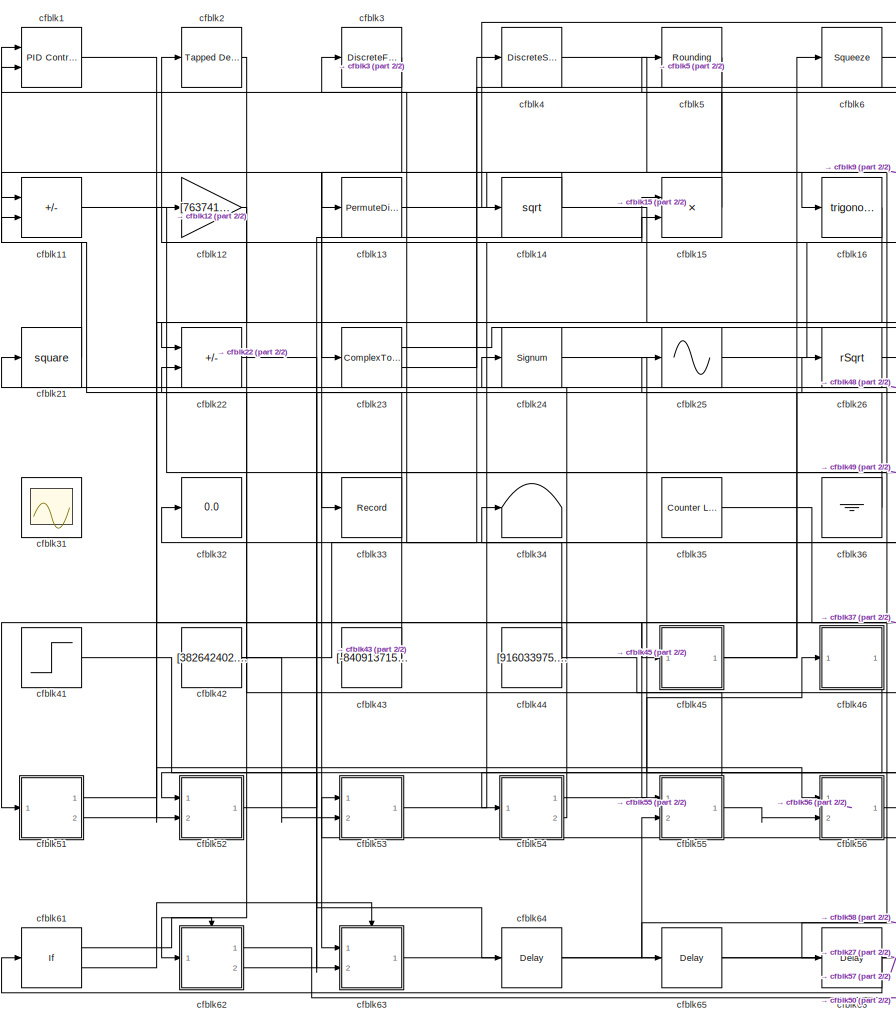
[diagram: root canvas - part 1/2, left side, full height]
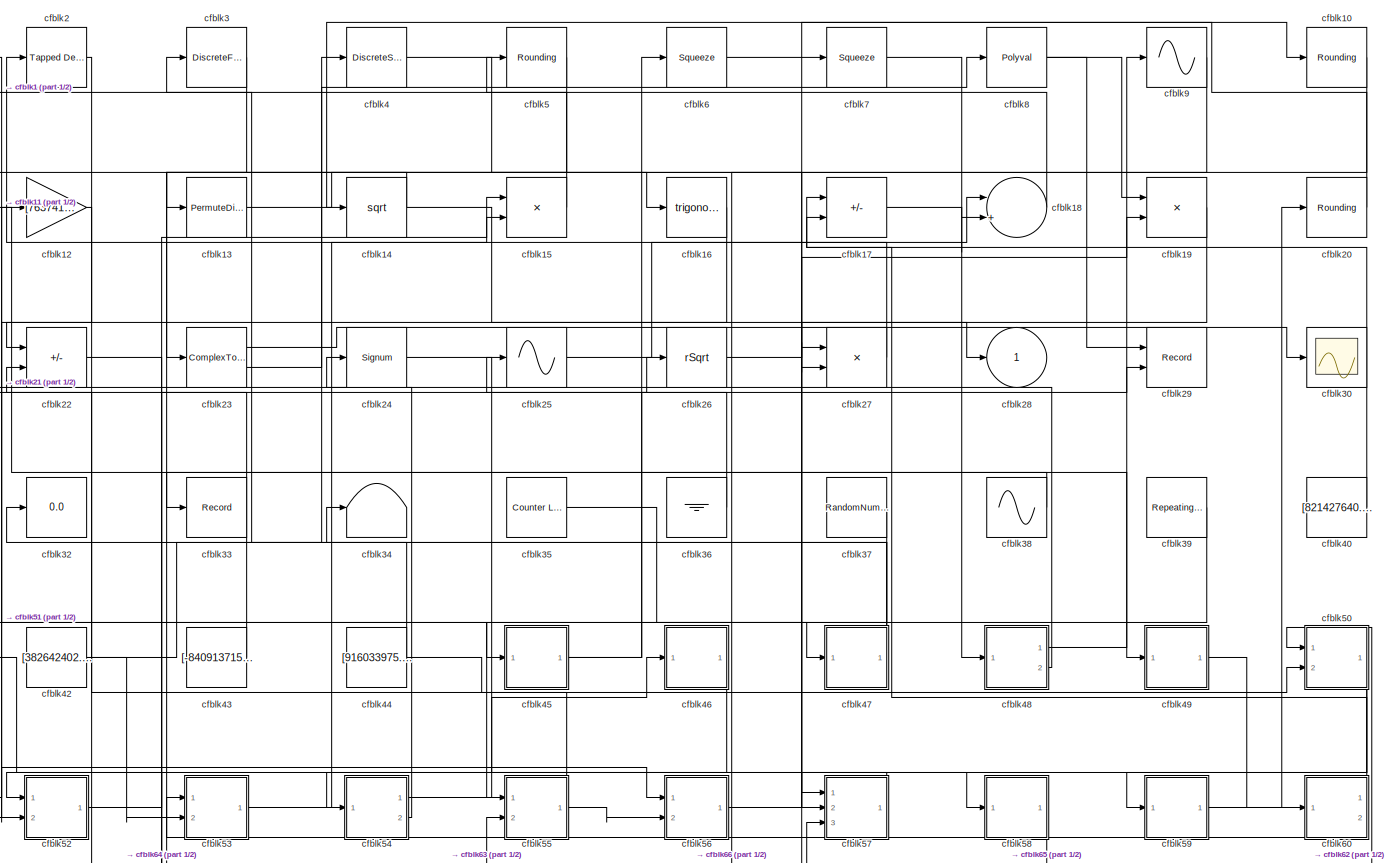
[diagram: root canvas - part 2/2, most of the canvas]
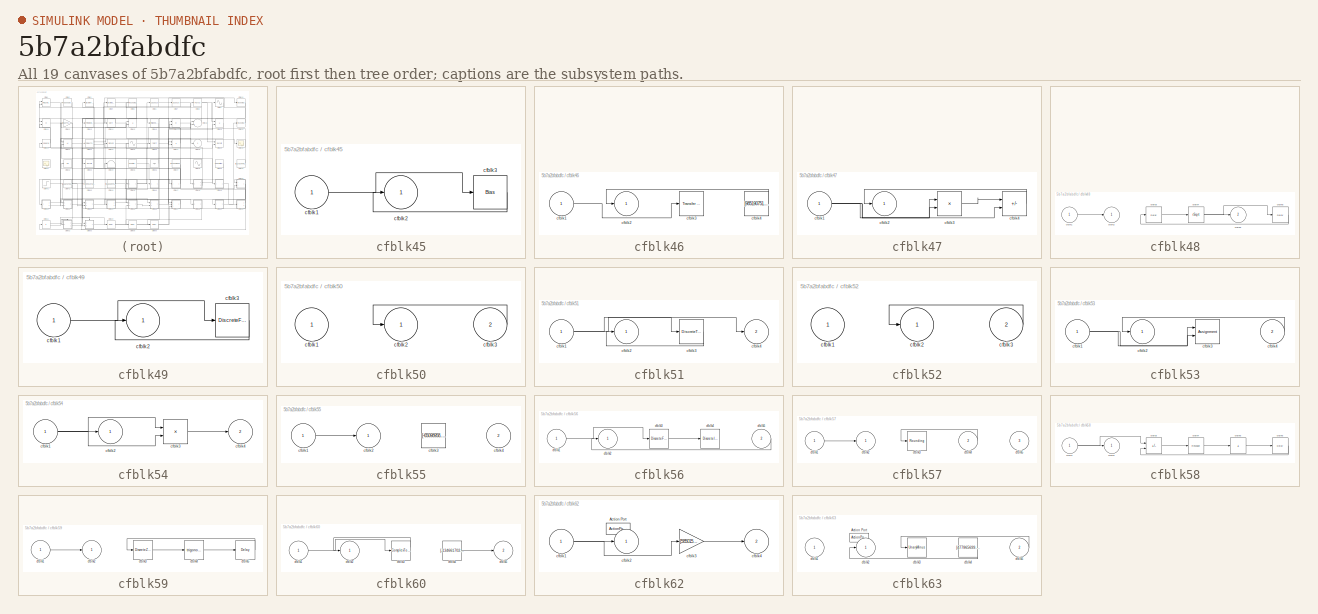
[diagram: thumbnail index - all 19 canvases of the model, root first then tree order]
MODEL slx_5b7a2bfabdfc
KIND model
CONFIG AbsTol = auto
CONFIG EnableMultiTasking = off
CONFIG FixedStep = auto
CONFIG MaxStep = auto
CONFIG MinStep = auto
CONFIG RelTol = 1e-3
CONFIG SampleTimeConstraint = Unconstrained
CONFIG SolverName = VariableStepAuto
CONFIG StartTime = 0.0
CONFIG StopTime = 10.0
BLOCK [Reference] cfblk1  REF=slpidlib/PID Controller (2DOF)
  Ports = [2, 1]
  SourceBlock = slpidlib/PID Controller (2DOF)
  SourceProductBaseCode = SL
  SourceType = PID 2dof
BLOCK [Rounding] cfblk10
BLOCK [Sum] cfblk11
  IconShape = rectangular
  Inputs = +-
  Ports = [2, 1]
BLOCK [Gain] cfblk12
  Gain = [763741198.850163]
BLOCK [PermuteDimensions] cfblk13
BLOCK [Sqrt] cfblk14
BLOCK [Product] cfblk15
  Inputs = **
  Ports = [2, 1]
BLOCK [Trigonometry] cfblk16
  Ports = [1, 1]
BLOCK [Sum] cfblk17
  IconShape = rectangular
  Inputs = --
  Ports = [2, 1]
BLOCK [Sum] cfblk18
  Inputs = |++
  Ports = [2, 1]
BLOCK [Product] cfblk19
  Inputs = **
  Ports = [2, 1]
BLOCK [Reference] cfblk2  REF=simulink/Discrete/Tapped Delay
  Ports = [1, 1]
  SourceBlock = simulink/Discrete/Tapped Delay
  SourceProductBaseCode = SL
  SourceType = Tapped Delay Line
BLOCK [Rounding] cfblk20
BLOCK [Math] cfblk21
  Operator = square
  Ports = [1, 1]
BLOCK [Sum] cfblk22
  IconShape = rectangular
  Inputs = -+
  Ports = [2, 1]
BLOCK [ComplexToMagnitudeAngle] cfblk23
  Ports = [1, 2]
BLOCK [Signum] cfblk24
BLOCK [Sin] cfblk25
  Ports = [1, 1]
  SampleTime = 0
  TimeSource = Use external signal
BLOCK [Sqrt] cfblk26
  AlgorithmType = Newton-Raphson
  Operator = rSqrt
BLOCK [Product] cfblk27
  Inputs = **
  Ports = [2, 1]
BLOCK [Outport] cfblk28
BLOCK [Record] cfblk29
  CompatibilityTag = XY
  FileSettingsInternal = {"entries":[{"content":{"excelSettings":{"content":{},"type":"Streamout.ExcelSettings"}},"type":"Streamout.FileSettingStorage","uuid":"035eb0ec-31ac-4015-9700-7ee30b468211"}],"packageUris":["http://schema.mathworks.com/mf0/streamout_blocks/R2020a"],"version":"1.0"}
  Layout = [1 1]
  Ports = [2]
  SignalsInternal = {"entries":[{"content":{"signals":[{"content":{"blockPath":["sampleModel139/cfblk29"],"channel":[],"dimensions":[1],"domain":"sampleModel139/cfblk29","lineColor":"#a2142f","plots":[1],"port":1,"sid":[""],"signalID":4965,"signalName":"cfblk8"},"type":"RecordBlkView.Signal","uuid":"c6bd2487-9314-43da-b1fb-71fc1f77a4db"},{"content":{"blockPath":["sampleModel139/cfblk29"],"channel":[],"dimensions":[1]...<+382ch>
  VisualizationBindings = {"xyplotplugin":{"info":[{"series":[{"bindingParametersList":[{"parameter":"X-Axis","signalID":4965,"signalName":"cfblk8"},{"parameter":"Y-Axis","signalID":4969,"signalName":"cfblk45"}],"seriesID":37675}],"subplotID":1}]}}
BLOCK [DiscreteFir] cfblk3
  InputPortMap = u0
  OutputPortMap = o0
  Ports = [1, 1]
  SampleTime = 1
BLOCK [Scope] cfblk30
  Floating = off
  NumInputPorts = 1
  Ports = [1]
BLOCK [Scope] cfblk31
  Floating = on
  NumInputPorts = 1
  Ports = []
BLOCK [Display] cfblk32
  Decimation = 1
  Ports = [1]
BLOCK [Record] cfblk33
  FileSettingsInternal = {"entries":[{"content":{"excelSettings":{"content":{},"type":"Streamout.ExcelSettings"}},"type":"Streamout.FileSettingStorage","uuid":"4e6fae24-c750-479a-bc5f-d2fa416f0b49"}],"packageUris":["http://schema.mathworks.com/mf0/streamout_blocks/R2020a"],"version":"1.0"}
  Ports = [1]
  SignalsInternal = {"entries":[{"content":{"signals":[{"content":{"blockPath":["sampleModel139/cfblk33"],"channel":[],"dimensions":[1],"domain":"sampleModel139/cfblk33","lineColor":"#64d413","plots":[1],"port":1,"sid":[""],"signalID":4973,"signalName":"cfblk38"},"type":"RecordBlkView.Signal","uuid":"b933cee2-0ab4-4ff8-9a7b-ea3465a830b1"}]},"type":"RecordBlkView.InputSignals","uuid":"fc2d5747-40b1-4522-9bd4-405ff4870...<+97ch>
  VisualizationBindings = {"sparklinesplugin":{"info":[{"bindingParametersList":[],"subplotID":1}]}}
BLOCK [Terminator] cfblk34
BLOCK [Reference] cfblk35  REF=simulink/Sources/Counter
Limited
  Ports = [0, 1]
  SourceBlock = simulink/Sources/Counter\nLimited
  SourceProductBaseCode = SL
  SourceType = Counter Limited
BLOCK [Ground] cfblk36
BLOCK [RandomNumber] cfblk37
  Mean = [-82458.859400]
  SampleTime = 0.1
  Seed = [51619611.000000]
  Variance = [16732.506883]
BLOCK [Sin] cfblk38
  Amplitude = [758373332.756424]
  Bias = [-342353249.313701]
  Ports = [0, 1]
  SampleTime = 0
BLOCK [Reference] cfblk39  REF=simulink/Sources/Repeating
Sequence
  Ports = [0, 1]
  SourceBlock = simulink/Sources/Repeating\nSequence
  SourceProductBaseCode = SL
  SourceType = Repeating table
BLOCK [DiscreteStateSpace] cfblk4
BLOCK [Constant] cfblk40
  SampleTime = 1
  Value = [821427640.610613]
BLOCK [Step] cfblk41
  After = [-124766894.085280]
  Before = [502911261.959366]
  SampleTime = 0
  Time = [22.000000]
BLOCK [Constant] cfblk42
  SampleTime = 1
  Value = [382642402.042201]
BLOCK [Constant] cfblk43
  SampleTime = 1
  Value = [-840913715.983325]
BLOCK [Constant] cfblk44
  SampleTime = 1
  Value = [916033975.987671]
BLOCK [SubSystem] cfblk45
  Ports = [1, 1]
  RequestExecContextInheritance = off
BLOCK [Inport] cfblk45/cfblk1
BLOCK [Outport] cfblk45/cfblk2
BLOCK [Bias] cfblk45/cfblk3
  Bias = [-543554504.013159]
  SaturateOnIntegerOverflow = off
BLOCK [SubSystem] cfblk46
  Ports = [1, 1]
  RequestExecContextInheritance = off
BLOCK [Inport] cfblk46/cfblk1
BLOCK [Outport] cfblk46/cfblk2
BLOCK [Reference] cfblk46/cfblk3  REF=simulink/Discrete/Transfer Fcn
First Order
  Ports = [1, 1]
  SourceBlock = simulink/Discrete/Transfer Fcn\nFirst Order
  SourceProductBaseCode = SL
  SourceType = First Order Transfer Fcn
BLOCK [Constant] cfblk46/cfblk4
  SampleTime = 1
  Value = [985190751.381586]
BLOCK [SubSystem] cfblk47
  Ports = [1, 1]
  RequestExecContextInheritance = off
BLOCK [Inport] cfblk47/cfblk1
BLOCK [Outport] cfblk47/cfblk2
BLOCK [Product] cfblk47/cfblk3
  Ports = [2, 1]
BLOCK [Sum] cfblk47/cfblk4
  IconShape = rectangular
  Inputs = +-
  Ports = [2, 1]
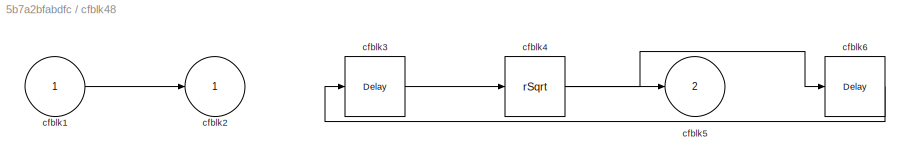
BLOCK [SubSystem] cfblk48
  Ports = [1, 2]
  RequestExecContextInheritance = off
BLOCK [Inport] cfblk48/cfblk1
BLOCK [Outport] cfblk48/cfblk2
BLOCK [Delay] cfblk48/cfblk3
  InputPortMap = u0
  Ports = [1, 1]
  SampleTime = 1
BLOCK [Sqrt] cfblk48/cfblk4
  AlgorithmType = Newton-Raphson
  Operator = rSqrt
BLOCK [Outport] cfblk48/cfblk5
  Port = 2
BLOCK [Delay] cfblk48/cfblk6
  InputPortMap = u0
  Ports = [1, 1]
  SampleTime = 1
BLOCK [SubSystem] cfblk49
  Ports = [1, 1]
  RequestExecContextInheritance = off
BLOCK [Inport] cfblk49/cfblk1
BLOCK [Outport] cfblk49/cfblk2
BLOCK [DiscreteFir] cfblk49/cfblk3
  InputPortMap = u0
  OutputPortMap = o0
  Ports = [1, 1]
  SampleTime = 1
BLOCK [Rounding] cfblk5
BLOCK [SubSystem] cfblk50
  Ports = [2, 1]
  RequestExecContextInheritance = off
BLOCK [Inport] cfblk50/cfblk1
BLOCK [Outport] cfblk50/cfblk2
BLOCK [Inport] cfblk50/cfblk3
  Port = 2
BLOCK [SubSystem] cfblk51
  Ports = [1, 2]
  RequestExecContextInheritance = off
BLOCK [Inport] cfblk51/cfblk1
BLOCK [Outport] cfblk51/cfblk2
BLOCK [DiscreteTransferFcn] cfblk51/cfblk3
  InputPortMap = u0
  Ports = [1, 1]
  SampleTime = 1
BLOCK [Outport] cfblk51/cfblk4
  Port = 2
BLOCK [SubSystem] cfblk52
  Ports = [2, 1]
  RequestExecContextInheritance = off
BLOCK [Inport] cfblk52/cfblk1
BLOCK [Outport] cfblk52/cfblk2
BLOCK [Inport] cfblk52/cfblk3
  Port = 2
BLOCK [SubSystem] cfblk53
  Ports = [2, 1]
  RequestExecContextInheritance = off
BLOCK [Inport] cfblk53/cfblk1
BLOCK [Outport] cfblk53/cfblk2
BLOCK [Assignment] cfblk53/cfblk3
  DiagnosticForDimensions = Warning
  IndexOptions = Index vector (dialog)
  Indices = 1
  OutputSizes = 1
  Ports = [2, 1]
BLOCK [Inport] cfblk53/cfblk4
  Port = 2
BLOCK [SubSystem] cfblk54
  Ports = [1, 2]
  RequestExecContextInheritance = off
BLOCK [Inport] cfblk54/cfblk1
BLOCK [Outport] cfblk54/cfblk2
BLOCK [Product] cfblk54/cfblk3
  Ports = [2, 1]
BLOCK [Outport] cfblk54/cfblk4
  Port = 2
BLOCK [SubSystem] cfblk55
  Ports = [2, 1]
  RequestExecContextInheritance = off
BLOCK [Inport] cfblk55/cfblk1
BLOCK [Outport] cfblk55/cfblk2
BLOCK [Constant] cfblk55/cfblk3
  SampleTime = 1
  Value = [-65098958.715037]
BLOCK [Inport] cfblk55/cfblk4
  Port = 2
BLOCK [SubSystem] cfblk56
  Ports = [2, 1]
  RequestExecContextInheritance = off
BLOCK [Inport] cfblk56/cfblk1
BLOCK [Outport] cfblk56/cfblk2
BLOCK [DiscreteFilter] cfblk56/cfblk3
  InputPortMap = u0
  Ports = [1, 1]
  SampleTime = 1
BLOCK [DiscreteIntegrator] cfblk56/cfblk4
  ICPrevOutput = DiscIntNeverNeededParam
  ICPrevScaledInput = DiscIntNeverNeededParam
  InitialConditionSetting = Auto
  Ports = [1, 1]
BLOCK [Inport] cfblk56/cfblk5
  Port = 2
BLOCK [SubSystem] cfblk57
  Ports = [3, 1]
  RequestExecContextInheritance = off
BLOCK [Inport] cfblk57/cfblk1
BLOCK [Outport] cfblk57/cfblk2
BLOCK [Rounding] cfblk57/cfblk3
BLOCK [Inport] cfblk57/cfblk4
  Port = 2
BLOCK [Inport] cfblk57/cfblk5
  Port = 3
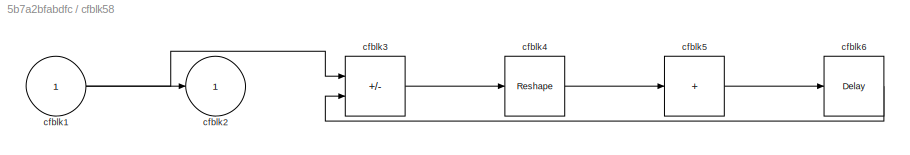
BLOCK [SubSystem] cfblk58
  Ports = [1, 1]
  RequestExecContextInheritance = off
BLOCK [Inport] cfblk58/cfblk1
BLOCK [Outport] cfblk58/cfblk2
BLOCK [Sum] cfblk58/cfblk3
  IconShape = rectangular
  Inputs = +-
  Ports = [2, 1]
BLOCK [Reshape] cfblk58/cfblk4
  Ports = [1, 1]
BLOCK [Sum] cfblk58/cfblk5
  IconShape = rectangular
  Inputs = +
  Ports = [1, 1]
BLOCK [Delay] cfblk58/cfblk6
  InputPortMap = u0
  Ports = [1, 1]
  SampleTime = 1
BLOCK [SubSystem] cfblk59
  Ports = [1, 1]
  RequestExecContextInheritance = off
BLOCK [Inport] cfblk59/cfblk1
BLOCK [Outport] cfblk59/cfblk2
BLOCK [DiscreteZeroPole] cfblk59/cfblk3
  Gain = 1
  Poles = [0 0.5]
BLOCK [Trigonometry] cfblk59/cfblk4
  Ports = [1, 1]
BLOCK [Delay] cfblk59/cfblk5
  InputPortMap = u0
  Ports = [1, 1]
  SampleTime = 1
BLOCK [Squeeze] cfblk6
BLOCK [SubSystem] cfblk60
  Ports = [1, 2]
  RequestExecContextInheritance = off
BLOCK [Inport] cfblk60/cfblk1
BLOCK [Outport] cfblk60/cfblk2
BLOCK [ComplexToMagnitudeAngle] cfblk60/cfblk3
  Ports = [1, 2]
BLOCK [Constant] cfblk60/cfblk4
  SampleTime = 1
  Value = [-134661702.551121]
BLOCK [Outport] cfblk60/cfblk5
  Port = 2
BLOCK [If] cfblk61
  IfExpression = u1 >= 0
  Ports = [1, 2]
  SampleTime = 1
BLOCK [SubSystem] cfblk62
  Ports = [1, 2, 0, 0, 0, 0, 0, 1]
  RequestExecContextInheritance = off
  TreatAsAtomicUnit = on
BLOCK [ActionPort] cfblk62/Action Port
  ActionPortLabel = if(u1 >= 0)
BLOCK [Inport] cfblk62/cfblk1
BLOCK [Outport] cfblk62/cfblk2
BLOCK [Gain] cfblk62/cfblk3
  Gain = [585015927.617353]
BLOCK [Outport] cfblk62/cfblk4
  Port = 2
BLOCK [SubSystem] cfblk63
  Ports = [2, 1, 0, 0, 0, 0, 0, 1]
  RequestExecContextInheritance = off
  TreatAsAtomicUnit = on
BLOCK [ActionPort] cfblk63/Action Port
  ActionPortLabel = else
BLOCK [Inport] cfblk63/cfblk1
BLOCK [Outport] cfblk63/cfblk2
BLOCK [UnaryMinus] cfblk63/cfblk3
BLOCK [Constant] cfblk63/cfblk4
  SampleTime = 1
  Value = [477865699.585645]
BLOCK [Inport] cfblk63/cfblk5
  Port = 2
BLOCK [Delay] cfblk64
  InputPortMap = u0
  Ports = [1, 1]
  SampleTime = 1
BLOCK [Delay] cfblk65
  InputPortMap = u0
  Ports = [1, 1]
  SampleTime = 1
BLOCK [Delay] cfblk66
  InputPortMap = u0
  Ports = [1, 1]
  SampleTime = 1
BLOCK [Squeeze] cfblk7
BLOCK [Polyval] cfblk8
  Coefs = [ +2.081618890e-019, -1.441693666e-014, +4.719686976e-010, -8.536869453e-006, +1.621573104e-001, -8.087801117e+001 ]
BLOCK [Sin] cfblk9
  Ports = [1, 1]
  SampleTime = 0
  TimeSource = Use external signal
LINE cfblk10:1 -> cfblk23:1
LINE cfblk11:1 -> cfblk49:1
LINE cfblk12:1 -> cfblk62:1
LINE cfblk13:1 -> cfblk16:1
NET cfblk14:1 -> cfblk13:1, cfblk28:1
LINE cfblk15:1 -> cfblk1:2
LINE cfblk16:1 -> cfblk52:2
LINE cfblk17:1 -> cfblk48:1
LINE cfblk18:1 -> cfblk5:1
LINE cfblk19:1 -> cfblk27:2
LINE cfblk1:1 -> cfblk45:1
LINE cfblk20:1 -> cfblk14:1
LINE cfblk21:1 -> cfblk1:1
LINE cfblk22:1 -> cfblk64:1
LINE cfblk23:1 -> cfblk30:1
LINE cfblk23:2 -> cfblk8:1
LINE cfblk24:1 -> cfblk58:1
LINE cfblk25:1 -> cfblk18:1
LINE cfblk26:1 -> cfblk19:2
LINE cfblk27:1 -> cfblk2:1
LINE cfblk2:1 -> cfblk22:1
LINE cfblk35:1 -> cfblk47:1
LINE cfblk36:1 -> cfblk25:1
LINE cfblk37:1 -> cfblk51:1
LINE cfblk38:1 -> cfblk33:1
LINE cfblk39:1 -> cfblk55:1
LINE cfblk3:1 -> cfblk63:1
LINE cfblk40:1 -> cfblk17:1
LINE cfblk41:1 -> cfblk63:2
NET cfblk42:1 -> cfblk4:1, cfblk53:2
LINE cfblk43:1 -> cfblk11:2
NET cfblk44:1 -> cfblk32:1, cfblk50:2
LINE cfblk45/cfblk1:1 -> cfblk45/cfblk3:1
LINE cfblk45/cfblk3:1 -> cfblk45/cfblk2:1
NET cfblk45:1 -> cfblk29:2, cfblk6:1
LINE cfblk46/cfblk1:1 -> cfblk46/cfblk3:1
LINE cfblk46/cfblk4:1 -> cfblk46/cfblk2:1
LINE cfblk46:1 -> cfblk52:1
NET cfblk47/cfblk1:1 -> cfblk47/cfblk3:1, cfblk47/cfblk3:2, cfblk47/cfblk4:2
LINE cfblk47/cfblk3:1 -> cfblk47/cfblk4:1
LINE cfblk47/cfblk4:1 -> cfblk47/cfblk2:1
NET cfblk47:1 -> cfblk34:1, cfblk3:1
LINE cfblk48/cfblk1:1 -> cfblk48/cfblk2:1
LINE cfblk48/cfblk3:1 -> cfblk48/cfblk4:1
NET cfblk48/cfblk4:1 -> cfblk48/cfblk5:1, cfblk48/cfblk6:1
LINE cfblk48/cfblk6:1 -> cfblk48/cfblk3:1
LINE cfblk48:1 -> cfblk9:1
LINE cfblk48:2 -> cfblk21:1
LINE cfblk49/cfblk1:1 -> cfblk49/cfblk3:1
LINE cfblk49/cfblk3:1 -> cfblk49/cfblk2:1
LINE cfblk49:1 -> cfblk60:1
LINE cfblk4:1 -> cfblk57:1
LINE cfblk50/cfblk3:1 -> cfblk50/cfblk2:1
NET cfblk50:1 -> cfblk57:2, cfblk59:1
NET cfblk51/cfblk1:1 -> cfblk51/cfblk3:1, cfblk51/cfblk4:1
LINE cfblk51/cfblk3:1 -> cfblk51/cfblk2:1
LINE cfblk51:1 -> cfblk12:1
LINE cfblk51:2 -> cfblk56:1
LINE cfblk52/cfblk3:1 -> cfblk52/cfblk2:1
LINE cfblk52:1 -> cfblk26:1
NET cfblk53/cfblk1:1 -> cfblk53/cfblk3:1, cfblk53/cfblk3:2
LINE cfblk53/cfblk4:1 -> cfblk53/cfblk2:1
LINE cfblk53:1 -> cfblk15:1
NET cfblk54/cfblk1:1 -> cfblk54/cfblk2:1, cfblk54/cfblk3:1, cfblk54/cfblk3:2
LINE cfblk54/cfblk3:1 -> cfblk54/cfblk4:1
LINE cfblk54:1 -> cfblk46:1
LINE cfblk54:2 -> cfblk24:1
LINE cfblk55/cfblk1:1 -> cfblk55/cfblk2:1
NET cfblk55:1 -> cfblk22:2, cfblk56:2
LINE cfblk56/cfblk1:1 -> cfblk56/cfblk3:1
LINE cfblk56/cfblk3:1 -> cfblk56/cfblk4:1
LINE cfblk56/cfblk5:1 -> cfblk56/cfblk2:1
LINE cfblk56:1 -> cfblk7:1
LINE cfblk57/cfblk1:1 -> cfblk57/cfblk2:1
LINE cfblk57/cfblk4:1 -> cfblk57/cfblk3:1
LINE cfblk57:1 -> cfblk54:1
NET cfblk58/cfblk1:1 -> cfblk58/cfblk2:1, cfblk58/cfblk3:1
LINE cfblk58/cfblk3:1 -> cfblk58/cfblk4:1
LINE cfblk58/cfblk4:1 -> cfblk58/cfblk5:1
LINE cfblk58/cfblk5:1 -> cfblk58/cfblk6:1
LINE cfblk58/cfblk6:1 -> cfblk58/cfblk3:2
LINE cfblk58:1 -> cfblk65:1
LINE cfblk59/cfblk1:1 -> cfblk59/cfblk2:1
LINE cfblk59/cfblk3:1 -> cfblk59/cfblk4:1
LINE cfblk59/cfblk4:1 -> cfblk59/cfblk5:1
LINE cfblk59/cfblk5:1 -> cfblk59/cfblk3:1
LINE cfblk59:1 -> cfblk20:1
LINE cfblk5:1 -> cfblk11:1
LINE cfblk60/cfblk1:1 -> cfblk60/cfblk3:1
LINE cfblk60/cfblk3:1 -> cfblk60/cfblk2:1
LINE cfblk60/cfblk4:1 -> cfblk60/cfblk5:1
LINE cfblk60:1 -> cfblk17:2
LINE cfblk60:2 -> cfblk53:1
LINE cfblk61:1 -> cfblk62:ifaction
LINE cfblk61:2 -> cfblk63:ifaction
NET cfblk62/cfblk1:1 -> cfblk62/cfblk2:1, cfblk62/cfblk3:1
LINE cfblk62/cfblk3:1 -> cfblk62/cfblk4:1
LINE cfblk62:1 -> cfblk50:1
LINE cfblk62:2 -> cfblk15:2
LINE cfblk63/cfblk4:1 -> cfblk63/cfblk2:1
LINE cfblk63/cfblk5:1 -> cfblk63/cfblk3:1
LINE cfblk63:1 -> cfblk55:2
LINE cfblk64:1 -> cfblk27:1
LINE cfblk65:1 -> cfblk57:3
LINE cfblk66:1 -> cfblk61:1
LINE cfblk6:1 -> cfblk10:1
LINE cfblk7:1 -> cfblk18:2
NET cfblk8:1 -> cfblk19:1, cfblk29:1
LINE cfblk9:1 -> cfblk66:1
note: NET lines group one-source signal fan-out (src -> all destinations, sorted); 1:1 wires keep LINE
